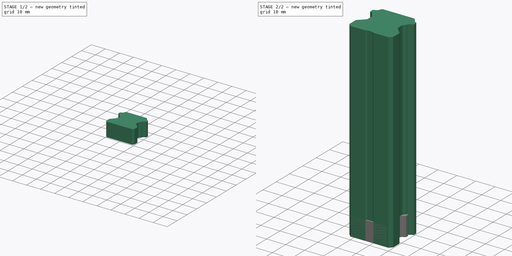
[diagram: build sequence overview — one tinted view per stage of 2, left to right]
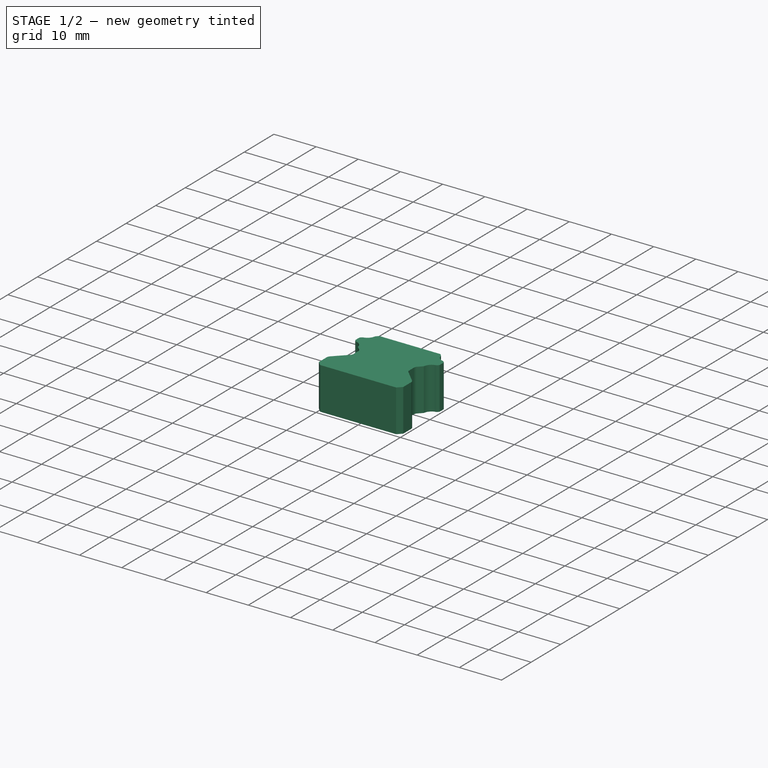
[diagram: stage 1 of 2 — iso view after this stage's code; geometry added in this stage tinted green]
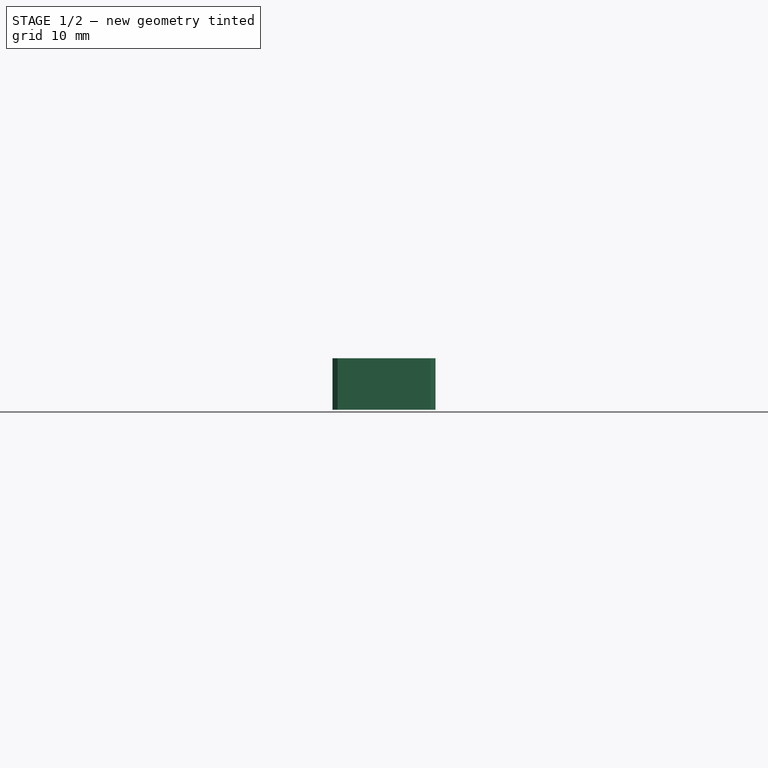
[diagram: stage 1 of 2 — front view after this stage's code; geometry added in this stage tinted green]
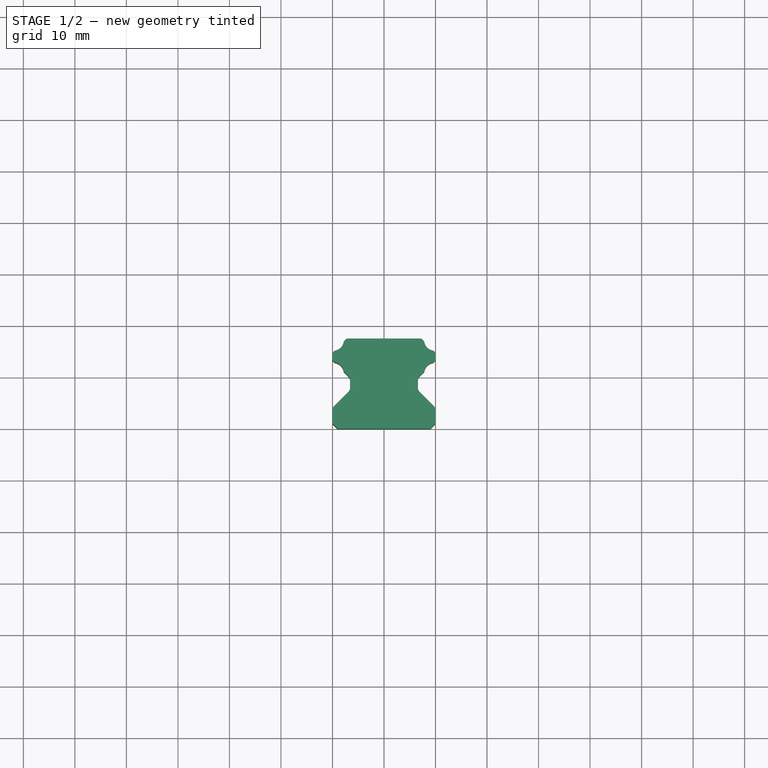
[diagram: stage 1 of 2 — top view after this stage's code; geometry added in this stage tinted green]
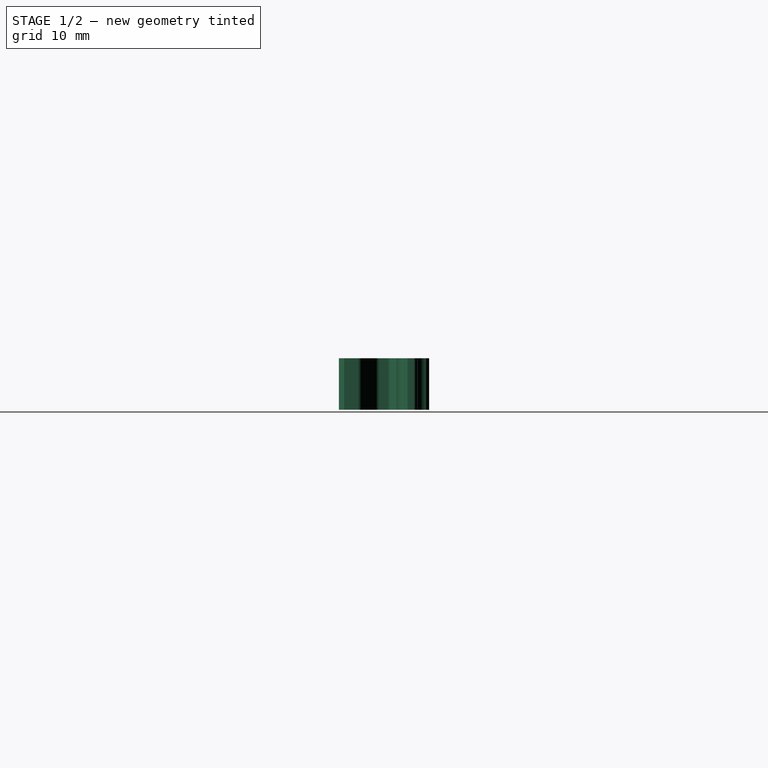
[diagram: stage 1 of 2 — right view after this stage's code; geometry added in this stage tinted green]
FCSTD DOCUMENT  (FreeCAD 0.20R30923 (Git))
Label: HGxx
License: All rights reserved
LicenseURL: http://en.wikipedia.org/wiki/All_rights_reserved
objects: Sketcher::SketchObject×4, PartDesign::Body×4, PartDesign::Pad×3, App::FeaturePython×2, Part::FeaturePython×2, App::Link×1, Spreadsheet::Sheet×1
note: 18 computed .brp shape members not serialized (recipe doc carries the construction recipe); baked Part::Feature solids carry a one-line shape summary decoded from their .brp

FEATURE [PartDesign::Body] Body
  AutoGroupSolids = false
  ExportMode = 0
  Group = -> [Pad]
  Origin = -> Origin
  Tip = -> Pad
  TreeRank = 155
  _ExportChildren = -> [Pad]
  _GroupVersion = 1
FEATURE [App::FeaturePython] Constraints  # WARN: FeaturePython — macro-defined, semantics opaque (R4)
  TreeRank = 163
  _LinkVersion = 1
  _Version = 1
FEATURE [App::FeaturePython] Elements  # WARN: FeaturePython — macro-defined, semantics opaque (R4)
  TreeRank = 164
  _LinkVersion = 1
FEATURE [App::Link] Link  label="Link(HGR15)"
  AutoLinkLabel = true
  AutoPlacement = true
  LinkedObject = -> Body001
  SyncGroupVisibility = false
  TreeRank = 166
  _LinkVersion = 1
  expr: LinkedObject = Spreadsheet.HGRresult
FEATURE [Part::FeaturePython] Parts  # WARN: FeaturePython — macro-defined, semantics opaque (R4)
  Group = -> [Link]
  GroupMode = 0
  TreeRank = 165
  _LinkVersion = 1
FEATURE [Part::FeaturePython] Assembly  # WARN: FeaturePython — macro-defined, semantics opaque (R4)
  AutoRelax = true
  BuildShape = 0
  Configuration = 0
  Freeze = false
  Group = -> [Constraints,Elements,Parts]
  TreeRank = 162
  Verbose = false
  _LinkVersion = 1
  _SolverType = 1
  _Version = 1
  expr: Configuration.Enum = Spreadsheet.cells[<<A3:|>>]
FEATURE [PartDesign::Body] Body003  label="HGR25"
  AutoGroupSolids = false
  ExportMode = 0
  Group = -> [Sketch]
  Origin = -> Origin003
  TreeRank = 196
  _ExportChildren = -> [Sketch]
  _GroupVersion = 1
FEATURE [PartDesign::Pad] Pad002
  AddSubType = 0
  AlongSketchNormal = false
  CheckUpToFaceLimits = true
  ClaimChildren = false
  Direction = (0,0,1)
  Fit = 0
  FitJoin = 0
  InnerFit = 0
  InnerFitJoin = 0
  InnerTaperAngle = 0
  InnerTaperAngleRev = 0
  Length = 10
  Length2 = 100
  Linearize = true
  NewSolid = false
  Profile = -> Sketch002
  Suppress = false
  TreeRank = 199
  Type = 0
  _ProfileBasedVersion = 1
FEATURE [PartDesign::Body] Body001  label="HGR15"
  AutoGroupSolids = false
  ExportMode = 0
  Group = -> [Sketch002,Pad002]
  Origin = -> Origin001
  Tip = -> Pad002
  TreeRank = 176
  _ExportChildren = -> [Pad002]
  _GroupVersion = 1
FEATURE [PartDesign::Pad] Pad003
  AddSubType = 0
  AlongSketchNormal = false
  CheckUpToFaceLimits = true
  ClaimChildren = false
  Direction = (0,0,1)
  Fit = 0
  FitJoin = 0
  InnerFit = 0
  InnerFitJoin = 0
  InnerTaperAngle = 0
  InnerTaperAngleRev = 0
  Length = 10
  Length2 = 100
  Linearize = true
  NewSolid = false
  Profile = -> Sketch001
  Suppress = false
  TreeRank = 200
  Type = 0
  _ProfileBasedVersion = 1
FEATURE [PartDesign::Body] Body002  label="HGR20"
  AutoGroupSolids = false
  ExportMode = 0
  Group = -> [Sketch001,Pad003]
  Origin = -> Origin002
  Tip = -> Pad003
  TreeRank = 186
  _ExportChildren = -> [Pad003]
  _GroupVersion = 1
FEATURE [Spreadsheet::Sheet] Spreadsheet
  PythonMode = false
  ShowCells = 0
  TreeRank = 201
  cells = A2==dbind(Assembly.Configuration.All); B2(HGRnumber)==.B3; A3=HGR15; B3=1; A4=HGR20; B4=2; A5=HGR25; B5=3; A8(HGR_str)==.HGRnumber == 1 ? <<HGR15>> : (.HGRnumber == 2 ? <<HGR20>> : <<HGR25>>); A9(HGRresult)==<<Body00%s (%s)>> % tuple(.HGRnumber, HGR_str)
  expr: cells.Bind.B2.ZZ2 = tuple(.cells, <<B>> + str(hiddenref(Assembly.Configuration) + 3), <<ZZ>> + str(hiddenref(Assembly.Configuration) + 3))
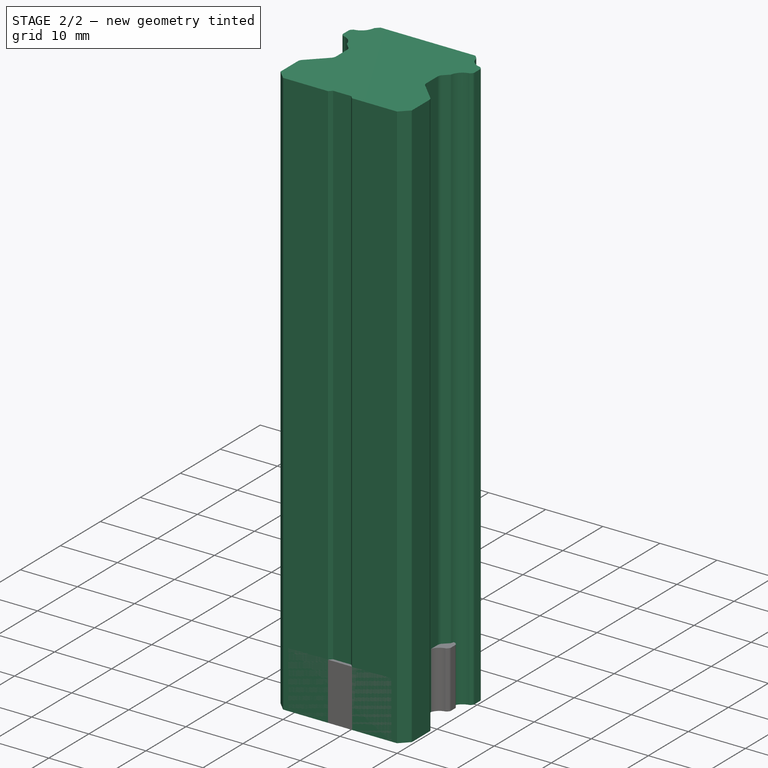
[diagram: stage 2 of 2 — iso view after this stage's code; geometry added in this stage tinted green]
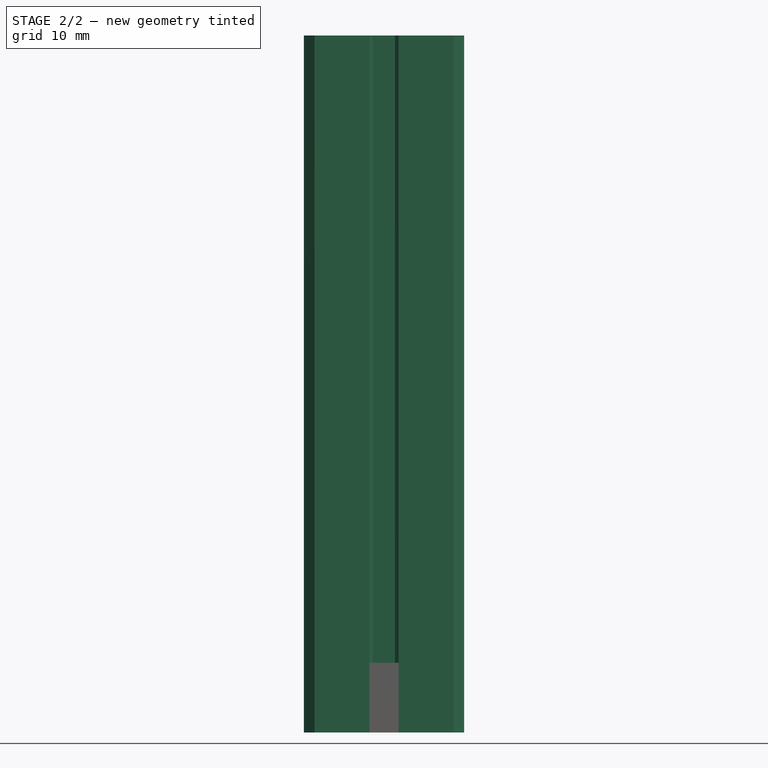
[diagram: stage 2 of 2 — front view after this stage's code; geometry added in this stage tinted green]
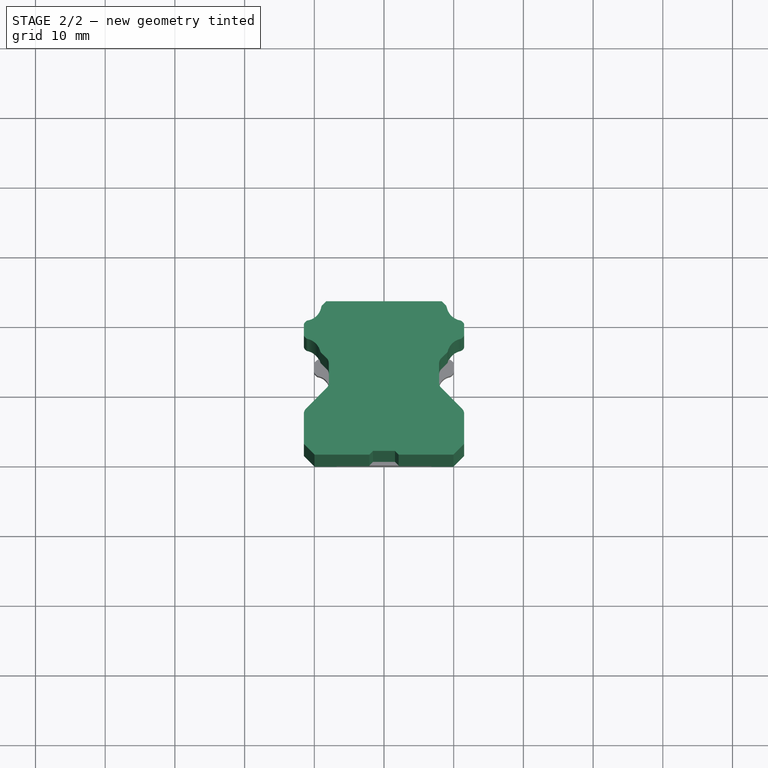
[diagram: stage 2 of 2 — top view after this stage's code; geometry added in this stage tinted green]
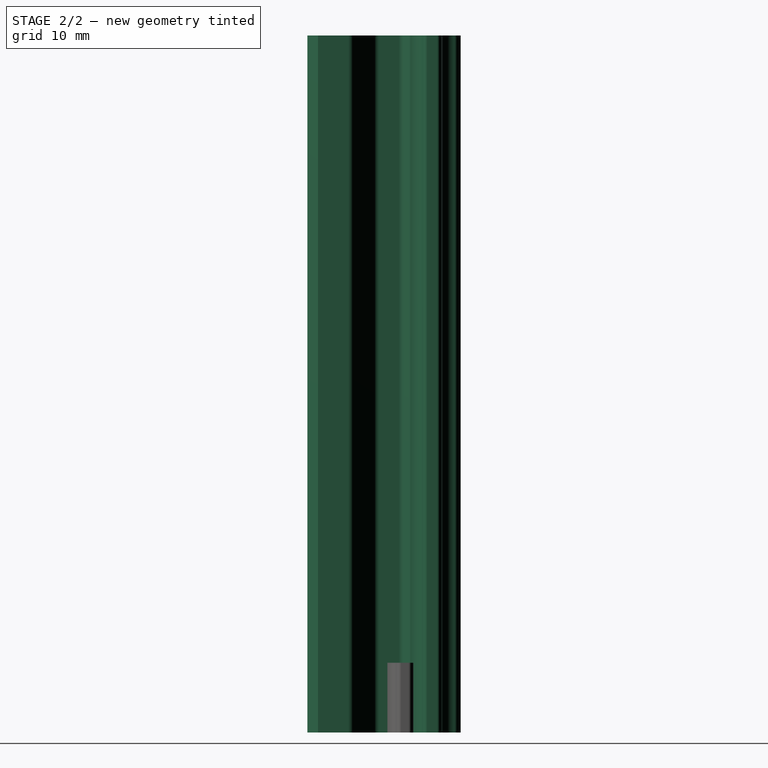
[diagram: stage 2 of 2 — right view after this stage's code; geometry added in this stage tinted green]
FEATURE [Sketcher::SketchObject] Sketch  label="HGR25R"
  FullyConstrained = false
  TreeRank = 161
  sketch-geometry (46):
    g0: LineSegment StartX=11.2096 StartY=6.56184 StartZ=0 EndX=8.20598 EndY=9.58663 EndZ=0
    g1: LineSegment StartX=-9.97922 StartY=0 StartZ=0 EndX=-11.5 EndY=1.52786 EndZ=0
    g2: LineSegment StartX=-8.20846 StartY=13.8135 StartZ=0 EndX=-8.93873 EndY=14.5438 EndZ=0
    g3: LineSegment StartX=2.10672 StartY=0 StartZ=0 EndX=1.58064 EndY=0.526074 EndZ=0
    g4: LineSegment StartX=-11.2036 StartY=16.7216 StartZ=0 EndX=-11.3536 EndY=16.8716 EndZ=0
    g5: LineSegment StartX=11.3536 StartY=18.9781 StartZ=0 EndX=11.1895 EndY=19.1421 EndZ=0
    g6: LineSegment StartX=9.04575 StartY=21.2544 StartZ=0 EndX=8.30011 EndY=22 EndZ=0
    g7: LineSegment StartX=-9.97922 StartY=0 StartZ=0 EndX=-2.10672 EndY=0 EndZ=0
    g8: LineSegment StartX=2.10672 StartY=0 StartZ=0 EndX=9.97922 EndY=0 EndZ=0
    g9: LineSegment StartX=-1.58064 StartY=0.526074 StartZ=0 EndX=1.58064 EndY=0.526074 EndZ=0
    g10: LineSegment StartX=-8.30011 StartY=22 StartZ=0 EndX=8.30011 EndY=22 EndZ=0
    g11: LineSegment StartX=-2.10672 StartY=0 StartZ=0 EndX=-1.58064 EndY=0.526074 EndZ=0
    g12: LineSegment StartX=11.2036 StartY=16.7216 StartZ=0 EndX=11.3536 EndY=16.8716 EndZ=0
    g13: LineSegment StartX=-11.3536 StartY=18.9781 StartZ=0 EndX=-11.1895 EndY=19.1421 EndZ=0
    g14: LineSegment StartX=-9.04575 StartY=21.2544 StartZ=0 EndX=-8.30011 EndY=22 EndZ=0
    g15: LineSegment StartX=8.20846 StartY=13.8135 StartZ=0 EndX=8.93873 EndY=14.5438 EndZ=0
    g16: LineSegment StartX=9.97922 StartY=0 StartZ=0 EndX=11.5 EndY=1.52786 EndZ=0
    g17: LineSegment StartX=-11.2096 StartY=6.56184 StartZ=0 EndX=-8.20598 EndY=9.58663 EndZ=0
    g18: LineSegment StartX=-11.5 StartY=17.2251 StartZ=0 EndX=-11.5 EndY=18.6245 EndZ=0
    g19: LineSegment StartX=-11.5 StartY=1.52786 StartZ=0 EndX=-11.5 EndY=5.85723 EndZ=0
    g20: LineSegment StartX=-7.91557 StartY=10.2912 StartZ=0 EndX=-7.91557 EndY=13.1064 EndZ=0
    g21: LineSegment StartX=7.91557 StartY=10.2912 StartZ=0 EndX=7.91557 EndY=13.1064 EndZ=0
    g22: LineSegment StartX=11.5 StartY=1.52786 StartZ=0 EndX=11.5 EndY=5.85723 EndZ=0
    g23: LineSegment StartX=11.5 StartY=17.2251 StartZ=0 EndX=11.5 EndY=18.6245 EndZ=0
    g24: ArcOfCircle CenterX=-11.4771 CenterY=14.2438 CenterZ=0 NormalX=0 NormalY=0 NormalZ=1 AngleXU=0 Radius=2.4 StartAngle=0.218097 EndAngle=1.35284
    g25: ArcOfCircle CenterX=-11.4693 CenterY=21.6085 CenterZ=0 NormalX=0 NormalY=0 NormalZ=1 AngleXU=0 Radius=2.4 StartAngle=4.93215 EndAngle=6.08802
    g26: ArcOfCircle CenterX=-11 CenterY=17.2251 CenterZ=0 NormalX=0 NormalY=0 NormalZ=1 AngleXU=0 Radius=0.5 StartAngle=3.14159 EndAngle=3.92699
    g27: ArcOfCircle CenterX=-11 CenterY=18.6245 CenterZ=0 NormalX=0 NormalY=0 NormalZ=1 AngleXU=0 Radius=0.499999 StartAngle=2.3562 EndAngle=3.14159
    g28: ArcOfCircle CenterX=-10.85 CenterY=17.0752 CenterZ=0 NormalX=0 NormalY=0 NormalZ=1 AngleXU=0 Radius=0.5 StartAngle=3.92699 EndAngle=4.49444
    g29: ArcOfCircle CenterX=-10.8494 CenterY=18.7757 CenterZ=0 NormalX=0 NormalY=0 NormalZ=1 AngleXU=0 Radius=0.5 StartAngle=1.76548 EndAngle=2.31906
    g30: ArcOfCircle CenterX=-10.5 CenterY=5.85723 CenterZ=0 NormalX=0 NormalY=0 NormalZ=1 AngleXU=0 Radius=0.999997 StartAngle=2.35971 EndAngle=3.14159
    g31: ArcOfCircle CenterX=-8.91557 CenterY=13.1064 CenterZ=0 NormalX=0 NormalY=0 NormalZ=1 AngleXU=0 Radius=1 StartAngle=0 EndAngle=0.785398
    g32: ArcOfCircle CenterX=-8.91557 CenterY=10.2912 CenterZ=0 NormalX=0 NormalY=0 NormalZ=1 AngleXU=0 Radius=0.999997 StartAngle=5.5013 EndAngle=6.28319
    g33: ArcOfCircle CenterX=-8.67937 CenterY=14.9712 CenterZ=0 NormalX=0 NormalY=0 NormalZ=1 AngleXU=0 Radius=0.5 StartAngle=3.57106 EndAngle=4.16705
    g34: ArcOfCircle CenterX=-8.6749 CenterY=20.9471 CenterZ=0 NormalX=0 NormalY=0 NormalZ=1 AngleXU=0 Radius=0.48161 StartAngle=2.44968 EndAngle=2.72251
    g35: ArcOfCircle CenterX=8.6749 CenterY=20.9471 CenterZ=0 NormalX=0 NormalY=0 NormalZ=1 AngleXU=0 Radius=0.481608 StartAngle=0.419083 EndAngle=0.691918
    g36: ArcOfCircle CenterX=8.67937 CenterY=14.9712 CenterZ=0 NormalX=0 NormalY=0 NormalZ=1 AngleXU=0 Radius=0.5 StartAngle=5.25773 EndAngle=5.85371
    g37: ArcOfCircle CenterX=8.91557 CenterY=10.2912 CenterZ=0 NormalX=0 NormalY=0 NormalZ=1 AngleXU=0 Radius=0.999997 StartAngle=3.14159 EndAngle=3.92348
    g38: ArcOfCircle CenterX=8.91557 CenterY=13.1064 CenterZ=0 NormalX=0 NormalY=0 NormalZ=1 AngleXU=0 Radius=1 StartAngle=2.35619 EndAngle=3.14159
    g39: ArcOfCircle CenterX=10.5 CenterY=5.85723 CenterZ=0 NormalX=0 NormalY=0 NormalZ=1 AngleXU=0 Radius=0.999997 StartAngle=0 EndAngle=0.781885
    g40: ArcOfCircle CenterX=10.8494 CenterY=18.7757 CenterZ=0 NormalX=0 NormalY=0 NormalZ=1 AngleXU=0 Radius=0.5 StartAngle=0.82253 EndAngle=1.37611
    g41: ArcOfCircle CenterX=10.85 CenterY=17.0752 CenterZ=0 NormalX=0 NormalY=0 NormalZ=1 AngleXU=0 Radius=0.5 StartAngle=4.93034 EndAngle=5.49779
    g42: ArcOfCircle CenterX=11 CenterY=17.2251 CenterZ=0 NormalX=0 NormalY=0 NormalZ=1 AngleXU=0 Radius=0.499999 StartAngle=5.49779 EndAngle=6.28319
    g43: ArcOfCircle CenterX=11 CenterY=18.6245 CenterZ=0 NormalX=0 NormalY=0 NormalZ=1 AngleXU=0 Radius=0.5 StartAngle=6.28318 EndAngle=7.06858
    g44: ArcOfCircle CenterX=11.4693 CenterY=21.6085 CenterZ=0 NormalX=0 NormalY=0 NormalZ=1 AngleXU=0 Radius=2.4 StartAngle=3.33676 EndAngle=4.49263
    g45: ArcOfCircle CenterX=11.4771 CenterY=14.2438 CenterZ=0 NormalX=0 NormalY=0 NormalZ=1 AngleXU=0 Radius=2.4 StartAngle=1.78875 EndAngle=2.9235
FEATURE [Sketcher::SketchObject] Sketch001  label="HGR20R"
  FullyConstrained = false
  TreeRank = 159
  sketch-geometry (42):
    g0: LineSegment StartX=-9 StartY=0 StartZ=0 EndX=-10 EndY=1 EndZ=0
    g1: LineSegment StartX=9.70711 StartY=4.36361 StartZ=0 EndX=6.89289 EndY=7.17783 EndZ=0
    g2: LineSegment StartX=-9.69063 StartY=12.9499 StartZ=0 EndX=-9.85355 EndY=13.1128 EndZ=0
    g3: LineSegment StartX=7.63253 StartY=17.0982 StartZ=0 EndX=7.23072 EndY=17.5 EndZ=0
    g4: LineSegment StartX=-6.89289 StartY=10.1522 StartZ=0 EndX=-7.63016 EndY=10.8894 EndZ=0
    g5: LineSegment StartX=9.85355 StartY=14.8772 StartZ=0 EndX=9.6785 EndY=15.0522 EndZ=0
    g6: LineSegment StartX=-9 StartY=0 StartZ=0 EndX=9 EndY=0 EndZ=0
    g7: LineSegment StartX=-7.23072 StartY=17.5 StartZ=0 EndX=7.23072 EndY=17.5 EndZ=0
    g8: LineSegment StartX=-9.85355 StartY=14.8772 StartZ=0 EndX=-9.6785 EndY=15.0522 EndZ=0
    g9: LineSegment StartX=6.89289 StartY=10.1522 StartZ=0 EndX=7.63016 EndY=10.8894 EndZ=0
    g10: LineSegment StartX=9 StartY=0 StartZ=0 EndX=10 EndY=1 EndZ=0
    g11: LineSegment StartX=-9.70711 StartY=4.36361 StartZ=0 EndX=-6.89289 EndY=7.17783 EndZ=0
    g12: LineSegment StartX=9.69063 StartY=12.9499 StartZ=0 EndX=9.85355 EndY=13.1128 EndZ=0
    g13: LineSegment StartX=-7.63253 StartY=17.0982 StartZ=0 EndX=-7.23072 EndY=17.5 EndZ=0
    g14: LineSegment StartX=-10 StartY=1 StartZ=0 EndX=-10 EndY=3.65651 EndZ=0
    g15: LineSegment StartX=-10 StartY=13.4664 StartZ=0 EndX=-10 EndY=14.5236 EndZ=0
    g16: LineSegment StartX=-6.6 StartY=7.88493 StartZ=0 EndX=-6.6 EndY=9.44506 EndZ=0
    g17: LineSegment StartX=6.6 StartY=7.88493 StartZ=0 EndX=6.6 EndY=9.44507 EndZ=0
    g18: LineSegment StartX=10 StartY=1 StartZ=0 EndX=10 EndY=3.65651 EndZ=0
    g19: LineSegment StartX=10 StartY=13.4664 StartZ=0 EndX=10 EndY=14.5236 EndZ=0
    g20: ArcOfCircle CenterX=-9.8106 CenterY=10.8487 CenterZ=0 NormalX=0 NormalY=0 NormalZ=1 AngleXU=0 Radius=2 StartAngle=0.190564 EndAngle=1.38023
    g21: ArcOfCircle CenterX=-9.81014 CenterY=17.1511 CenterZ=0 NormalX=0 NormalY=0 NormalZ=1 AngleXU=0 Radius=2 StartAngle=4.9077 EndAngle=6.08787
    g22: ArcOfCircle CenterX=-9.5 CenterY=13.4664 CenterZ=0 NormalX=0 NormalY=0 NormalZ=1 AngleXU=0 Radius=0.499999 StartAngle=3.14159 EndAngle=3.92699
    g23: ArcOfCircle CenterX=-9.5 CenterY=14.5236 CenterZ=0 NormalX=0 NormalY=0 NormalZ=1 AngleXU=0 Radius=0.499999 StartAngle=2.3562 EndAngle=3.14159
    g24: ArcOfCircle CenterX=-9.33707 CenterY=13.3035 CenterZ=0 NormalX=0 NormalY=0 NormalZ=1 AngleXU=0 Radius=0.499999 StartAngle=3.92699 EndAngle=4.52183
    g25: ArcOfCircle CenterX=-9.32495 CenterY=14.6987 CenterZ=0 NormalX=0 NormalY=0 NormalZ=1 AngleXU=0 Radius=0.500001 StartAngle=1.76611 EndAngle=2.3562
    g26: ArcOfCircle CenterX=-9 CenterY=3.65651 CenterZ=0 NormalX=0 NormalY=0 NormalZ=1 AngleXU=0 Radius=1 StartAngle=2.35619 EndAngle=3.14159
    g27: ArcOfCircle CenterX=-7.6 CenterY=7.88493 CenterZ=0 NormalX=0 NormalY=0 NormalZ=1 AngleXU=0 Radius=1 StartAngle=5.49779 EndAngle=6.28319
    g28: ArcOfCircle CenterX=-7.6 CenterY=9.44506 CenterZ=0 NormalX=0 NormalY=0 NormalZ=1 AngleXU=0 Radius=1 StartAngle=0 EndAngle=0.785399
    g29: ArcOfCircle CenterX=-7.35468 CenterY=16.6825 CenterZ=0 NormalX=0 NormalY=0 NormalZ=1 AngleXU=0 Radius=0.5 StartAngle=2.16 EndAngle=2.97992
    g30: ArcOfCircle CenterX=-7.35293 CenterY=11.3055 CenterZ=0 NormalX=0 NormalY=0 NormalZ=1 AngleXU=0 Radius=0.5 StartAngle=3.29825 EndAngle=4.12467
    g31: ArcOfCircle CenterX=7.35293 CenterY=11.3055 CenterZ=0 NormalX=0 NormalY=0 NormalZ=1 AngleXU=0 Radius=0.5 StartAngle=5.30011 EndAngle=6.12653
    g32: ArcOfCircle CenterX=7.35468 CenterY=16.6825 CenterZ=0 NormalX=0 NormalY=0 NormalZ=1 AngleXU=0 Radius=0.500001 StartAngle=0.161676 EndAngle=0.981596
    g33: ArcOfCircle CenterX=7.6 CenterY=7.88493 CenterZ=0 NormalX=0 NormalY=0 NormalZ=1 AngleXU=0 Radius=1 StartAngle=3.14159 EndAngle=3.92699
    g34: ArcOfCircle CenterX=7.6 CenterY=9.44507 CenterZ=0 NormalX=0 NormalY=0 NormalZ=1 AngleXU=0 Radius=1 StartAngle=2.35619 EndAngle=3.14159
    g35: ArcOfCircle CenterX=9 CenterY=3.65651 CenterZ=0 NormalX=0 NormalY=0 NormalZ=1 AngleXU=0 Radius=1 StartAngle=0 EndAngle=0.785398
    g36: ArcOfCircle CenterX=9.32495 CenterY=14.6987 CenterZ=0 NormalX=0 NormalY=0 NormalZ=1 AngleXU=0 Radius=0.499999 StartAngle=0.785397 EndAngle=1.37548
    g37: ArcOfCircle CenterX=9.33707 CenterY=13.3035 CenterZ=0 NormalX=0 NormalY=0 NormalZ=1 AngleXU=0 Radius=0.5 StartAngle=4.90295 EndAngle=5.49779
    g38: ArcOfCircle CenterX=9.5 CenterY=13.4664 CenterZ=0 NormalX=0 NormalY=0 NormalZ=1 AngleXU=0 Radius=0.499999 StartAngle=5.49779 EndAngle=6.28319
    g39: ArcOfCircle CenterX=9.5 CenterY=14.5236 CenterZ=0 NormalX=0 NormalY=0 NormalZ=1 AngleXU=0 Radius=0.499999 StartAngle=0 EndAngle=0.785397
    g40: ArcOfCircle CenterX=9.81014 CenterY=17.1511 CenterZ=0 NormalX=0 NormalY=0 NormalZ=1 AngleXU=0 Radius=2 StartAngle=3.33691 EndAngle=4.51707
    g41: ArcOfCircle CenterX=9.8106 CenterY=10.8487 CenterZ=0 NormalX=0 NormalY=0 NormalZ=1 AngleXU=0 Radius=2 StartAngle=1.76136 EndAngle=2.95103
  constraints (50):
    c: Coincident(g7,g13)
    c: Coincident(g13,g29)
    c: Coincident(g21,g29)
    c: Coincident(g21,g25)
    c: Coincident(g8,g25)
    c: Coincident(g8,g23)
    c: Coincident(g15,g23)
    c: Coincident(g15,g22)
    c: Coincident(g2,g22)
    c: Coincident(g2,g24)
    c: Coincident(g20,g24)
    c: Coincident(g20,g30)
    c: Coincident(g4,g30)
    c: Coincident(g4,g28)
    c: Coincident(g16,g28)
    c: Coincident(g16,g27)
    c: Coincident(g11,g27)
    c: Coincident(g11,g26)
    c: Coincident(g14,g26)
    c: Coincident(g0,g14)
    c: Coincident(g0,g6)
    c: Coincident(g6,g10)
    c: Coincident(g10,g18)
    c: Coincident(g18,g35)
    c: Coincident(g1,g35)
    c: Coincident(g1,g33)
    c: Coincident(g17,g33)
    c: Coincident(g17,g34)
    c: Coincident(g9,g34)
    c: Coincident(g9,g31)
    c: Coincident(g31,g41)
    c: Coincident(g37,g41)
    c: Coincident(g12,g37)
    c: Coincident(g12,g38)
    c: Coincident(g19,g38)
    c: Coincident(g19,g39)
    c: Coincident(g5,g39)
    c: Coincident(g5,g36)
    c: Coincident(g36,g40)
    c: Coincident(g32,g40)
    c: Coincident(g3,g32)
    c: Coincident(g3,g7)
    c: Horizontal(g7)
    c: Vertical(g19)
    c: Vertical(g18)
    c: Horizontal(g6)
    c: Vertical(g16)
    c: Vertical(g17)
    c: Vertical(g14)
    c: Vertical(g15)
FEATURE [Sketcher::SketchObject] Sketch002  label="HGR15R"
  FullyConstrained = false
  TreeRank = 158
  sketch-geometry (50):
    g0: LineSegment StartX=6.80531 StartY=13.0612 StartZ=0 EndX=6.77501 EndY=13.2021 EndZ=0
    g1: LineSegment StartX=-6.77426 StartY=10.7128 StartZ=0 EndX=-6.80624 EndY=10.8541 EndZ=0
    g2: LineSegment StartX=-6.8 StartY=0 StartZ=0 EndX=-7.5 EndY=0.7 EndZ=0
    g3: LineSegment StartX=7.20711 StartY=3.95047 StartZ=0 EndX=4.88716 EndY=6.27042 EndZ=0
    g4: LineSegment StartX=-4.88716 StartY=8.39816 StartZ=0 EndX=-5.08159 EndY=8.59259 EndZ=0
    g5: LineSegment StartX=5.08606 StartY=14.9629 StartZ=0 EndX=5.04899 EndY=15 EndZ=0
    g6: LineSegment StartX=-7.06065 StartY=11.1421 StartZ=0 EndX=-7.23572 EndY=11.2052 EndZ=0
    g7: LineSegment StartX=7.21871 StartY=12.7195 StartZ=0 EndX=7.07767 EndY=12.7633 EndZ=0
    g8: LineSegment StartX=-6.8 StartY=0 StartZ=0 EndX=6.8 EndY=0 EndZ=0
    g9: LineSegment StartX=-5.04899 StartY=15 StartZ=0 EndX=5.04899 EndY=15 EndZ=0
    g10: LineSegment StartX=-7.21871 StartY=12.7195 StartZ=0 EndX=-7.07767 EndY=12.7633 EndZ=0
    g11: LineSegment StartX=7.06065 StartY=11.1421 StartZ=0 EndX=7.23572 EndY=11.2052 EndZ=0
    g12: LineSegment StartX=6.8 StartY=0 StartZ=0 EndX=7.5 EndY=0.7 EndZ=0
    g13: LineSegment StartX=-7.20711 StartY=3.95047 StartZ=0 EndX=-4.88716 EndY=6.27042 EndZ=0
    g14: LineSegment StartX=4.88716 StartY=8.39816 StartZ=0 EndX=5.08159 EndY=8.59259 EndZ=0
    g15: LineSegment StartX=-5.08606 StartY=14.9629 StartZ=0 EndX=-5.04899 EndY=15 EndZ=0
    g16: LineSegment StartX=6.77426 StartY=10.7128 StartZ=0 EndX=6.80623 EndY=10.8541 EndZ=0
    g17: LineSegment StartX=-6.80531 StartY=13.0612 StartZ=0 EndX=-6.77501 EndY=13.2021 EndZ=0
    g18: LineSegment StartX=-7.5 StartY=0.7 StartZ=0 EndX=-7.5 EndY=3.24336 EndZ=0
    g19: LineSegment StartX=-7.5 StartY=11.5815 StartZ=0 EndX=-7.5 EndY=12.3375 EndZ=0
    g20: LineSegment StartX=-4.77 StartY=6.55326 StartZ=0 EndX=-4.77 EndY=8.11532 EndZ=0
    g21: LineSegment StartX=4.77 StartY=6.55326 StartZ=0 EndX=4.77 EndY=8.11532 EndZ=0
    g22: LineSegment StartX=7.5 StartY=0.7 StartZ=0 EndX=7.5 EndY=3.24336 EndZ=0
    g23: LineSegment StartX=7.5 StartY=11.5815 StartZ=0 EndX=7.5 EndY=12.3375 EndZ=0
    g24: ArcOfCircle CenterX=-7.19637 CenterY=10.7658 CenterZ=0 NormalX=0 NormalY=0 NormalZ=1 AngleXU=0 Radius=0.4 StartAngle=0.222511 EndAngle=1.22461
    g25: ArcOfCircle CenterX=-7.19637 CenterY=13.1453 CenterZ=0 NormalX=0 NormalY=0 NormalZ=1 AngleXU=0 Radius=0.399999 StartAngle=5.01369 EndAngle=6.07137
    g26: ArcOfCircle CenterX=-7.1 CenterY=11.5815 CenterZ=0 NormalX=0 NormalY=0 NormalZ=1 AngleXU=0 Radius=0.4 StartAngle=3.14159 EndAngle=4.3662
    g27: ArcOfCircle CenterX=-7.1 CenterY=12.3375 CenterZ=0 NormalX=0 NormalY=0 NormalZ=1 AngleXU=0 Radius=0.399999 StartAngle=1.8721 EndAngle=3.14159
    g28: ArcOfCircle CenterX=-6.85624 CenterY=8.85756 CenterZ=0 NormalX=0 NormalY=0 NormalZ=1 AngleXU=0 Radius=1.6 StartAngle=0.134276 EndAngle=1.33249
    g29: ArcOfCircle CenterX=-6.85623 CenterY=15.0614 CenterZ=0 NormalX=0 NormalY=0 NormalZ=1 AngleXU=0 Radius=1.6 StartAngle=4.95078 EndAngle=6.13385
    g30: ArcOfCircle CenterX=-6.5 CenterY=3.24336 CenterZ=0 NormalX=0 NormalY=0 NormalZ=1 AngleXU=0 Radius=1 StartAngle=2.35619 EndAngle=3.14159
    g31: ArcOfCircle CenterX=-6.38412 CenterY=10.801 CenterZ=0 NormalX=0 NormalY=0 NormalZ=1 AngleXU=0 Radius=0.4 StartAngle=3.3641 EndAngle=4.47408
    g32: ArcOfCircle CenterX=-6.38395 CenterY=13.118 CenterZ=0 NormalX=0 NormalY=0 NormalZ=1 AngleXU=0 Radius=0.4 StartAngle=1.80919 EndAngle=2.92978
    g33: ArcOfCircle CenterX=-5.17 CenterY=6.55326 CenterZ=0 NormalX=0 NormalY=0 NormalZ=1 AngleXU=0 Radius=0.4 StartAngle=5.49779 EndAngle=6.28319
    g34: ArcOfCircle CenterX=-5.17 CenterY=8.11532 CenterZ=0 NormalX=0 NormalY=0 NormalZ=1 AngleXU=0 Radius=0.4 StartAngle=0 EndAngle=0.785398
    g35: ArcOfCircle CenterX=-4.95206 CenterY=14.586 CenterZ=0 NormalX=0 NormalY=0 NormalZ=1 AngleXU=0 Radius=0.4 StartAngle=1.91239 EndAngle=2.50636
    g36: ArcOfCircle CenterX=-4.89142 CenterY=8.9445 CenterZ=0 NormalX=0 NormalY=0 NormalZ=1 AngleXU=0 Radius=0.4 StartAngle=2.81782 EndAngle=4.21695
    g37: ArcOfCircle CenterX=4.89142 CenterY=8.9445 CenterZ=0 NormalX=0 NormalY=0 NormalZ=1 AngleXU=0 Radius=0.4 StartAngle=5.20783 EndAngle=6.60695
    g38: ArcOfCircle CenterX=4.95206 CenterY=14.586 CenterZ=0 NormalX=0 NormalY=0 NormalZ=1 AngleXU=0 Radius=0.4 StartAngle=0.635234 EndAngle=1.2292
    g39: ArcOfCircle CenterX=5.17 CenterY=6.55326 CenterZ=0 NormalX=0 NormalY=0 NormalZ=1 AngleXU=0 Radius=0.4 StartAngle=3.14159 EndAngle=3.92699
    g40: ArcOfCircle CenterX=5.17 CenterY=8.11532 CenterZ=0 NormalX=0 NormalY=0 NormalZ=1 AngleXU=0 Radius=0.4 StartAngle=2.3562 EndAngle=3.14159
    g41: ArcOfCircle CenterX=6.38395 CenterY=13.118 CenterZ=0 NormalX=0 NormalY=0 NormalZ=1 AngleXU=0 Radius=0.399999 StartAngle=0.211816 EndAngle=1.33241
    g42: ArcOfCircle CenterX=6.38412 CenterY=10.801 CenterZ=0 NormalX=0 NormalY=0 NormalZ=1 AngleXU=0 Radius=0.4 StartAngle=4.9507 EndAngle=6.06068
    g43: ArcOfCircle CenterX=6.5 CenterY=3.24336 CenterZ=0 NormalX=0 NormalY=0 NormalZ=1 AngleXU=0 Radius=1 StartAngle=0 EndAngle=0.785398
    g44: ArcOfCircle CenterX=6.85623 CenterY=15.0614 CenterZ=0 NormalX=0 NormalY=0 NormalZ=1 AngleXU=0 Radius=1.6 StartAngle=3.29093 EndAngle=4.474
    g45: ArcOfCircle CenterX=6.85624 CenterY=8.85756 CenterZ=0 NormalX=0 NormalY=0 NormalZ=1 AngleXU=0 Radius=1.6 StartAngle=1.8091 EndAngle=3.00732
    g46: ArcOfCircle CenterX=7.1 CenterY=11.5815 CenterZ=0 NormalX=0 NormalY=0 NormalZ=1 AngleXU=0 Radius=0.4 StartAngle=5.05857 EndAngle=6.28319
    g47: ArcOfCircle CenterX=7.1 CenterY=12.3375 CenterZ=0 NormalX=0 NormalY=0 NormalZ=1 AngleXU=0 Radius=0.4 StartAngle=1.15308e-06 EndAngle=1.2695
    g48: ArcOfCircle CenterX=7.19637 CenterY=10.7658 CenterZ=0 NormalX=0 NormalY=0 NormalZ=1 AngleXU=0 Radius=0.4 StartAngle=1.91698 EndAngle=2.91908
    g49: ArcOfCircle CenterX=7.19637 CenterY=13.1453 CenterZ=0 NormalX=0 NormalY=0 NormalZ=1 AngleXU=0 Radius=0.4 StartAngle=3.35341 EndAngle=4.41109
  constraints (50):
    c: Coincident(g9,g15)
    c: Coincident(g15,g35)
    c: Coincident(g29,g35)
    c: Coincident(g29,g32)
    c: Coincident(g17,g32)
    c: Coincident(g17,g25)
    c: Coincident(g10,g25)
    c: Coincident(g10,g27)
    c: Coincident(g19,g27)
    c: Coincident(g19,g26)
    c: Coincident(g6,g26)
    c: Coincident(g6,g24)
    c: Coincident(g1,g24)
    c: Coincident(g1,g31)
    c: Coincident(g28,g31)
    c: Coincident(g28,g36)
    c: Coincident(g4,g36)
    c: Coincident(g4,g34)
    c: Coincident(g20,g34)
    c: Coincident(g20,g33)
    c: Coincident(g13,g33)
    c: Coincident(g13,g30)
    c: Coincident(g18,g30)
    c: Coincident(g2,g18)
    c: Coincident(g2,g8)
    c: Coincident(g8,g12)
    c: Coincident(g12,g22)
    c: Coincident(g22,g43)
    c: Coincident(g3,g43)
    c: Coincident(g3,g39)
    c: Coincident(g21,g39)
    c: Coincident(g21,g40)
    c: Coincident(g14,g40)
    c: Coincident(g14,g37)
    c: Coincident(g37,g45)
    c: Coincident(g42,g45)
    c: Coincident(g16,g42)
    c: Coincident(g16,g48)
    c: Coincident(g11,g48)
    c: Coincident(g11,g46)
    c: Coincident(g23,g46)
    c: Coincident(g23,g47)
    c: Coincident(g7,g47)
    c: Coincident(g7,g49)
    c: Coincident(g0,g49)
    c: Coincident(g0,g41)
    c: Coincident(g41,g44)
    c: Coincident(g38,g44)
    c: Coincident(g5,g38)
    c: Coincident(g5,g9)
FEATURE [Sketcher::SketchObject] Sketch003  label="HGRxx"
  FullyConstrained = false
  TreeRank = 160
  sketch-geometry (52):
    g0: LineSegment StartX=11.2093 StartY=6.56494 StartZ=0 EndX=8.2063 EndY=9.5863 EndZ=0
    g1: LineSegment StartX=-9.97 StartY=4e-16 StartZ=0 EndX=-11.5 EndY=1.53 EndZ=0
    g2: LineSegment StartX=-8.22091 StartY=13.8306 StartZ=0 EndX=-9.01307 EndY=14.5956 EndZ=0
    g3: LineSegment StartX=2.105 StartY=4e-16 StartZ=0 EndX=1.58 EndY=0.53 EndZ=0
    g4: LineSegment StartX=-11.2115 StartY=16.7186 StartZ=0 EndX=-11.3473 EndY=16.8497 EndZ=0
    g5: LineSegment StartX=11.3526 StartY=18.9639 StartZ=0 EndX=11.2067 EndY=19.109 EndZ=0
    g6: LineSegment StartX=8.78687 StartY=21.5158 StartZ=0 EndX=8.3 EndY=22 EndZ=0
    g7: LineSegment StartX=2.105 StartY=4e-16 StartZ=0 EndX=9.97 EndY=4e-16 EndZ=0
    g8: LineSegment StartX=-1.58 StartY=0.53 StartZ=0 EndX=1.58 EndY=0.53 EndZ=0
    g9: LineSegment StartX=-8.3 StartY=22 StartZ=0 EndX=8.3 EndY=22 EndZ=0
    g10: LineSegment StartX=-2.105 StartY=4e-16 StartZ=0 EndX=-1.58 EndY=0.53 EndZ=0
    g11: LineSegment StartX=11.2115 StartY=16.7186 StartZ=0 EndX=11.3473 EndY=16.8497 EndZ=0
    g12: LineSegment StartX=-11.3526 StartY=18.9639 StartZ=0 EndX=-11.2067 EndY=19.109 EndZ=0
    g13: LineSegment StartX=-8.78687 StartY=21.5158 StartZ=0 EndX=-8.3 EndY=22 EndZ=0
    g14: LineSegment StartX=8.22091 StartY=13.8306 StartZ=0 EndX=9.01307 EndY=14.5956 EndZ=0
    g15: LineSegment StartX=9.97 StartY=4e-16 StartZ=0 EndX=11.5 EndY=1.53 EndZ=0
    g16: LineSegment StartX=-11.2093 StartY=6.56494 StartZ=0 EndX=-8.2063 EndY=9.5863 EndZ=0
    g17: LineSegment StartX=-11.5 StartY=17.2094 StartZ=0 EndX=-11.5 EndY=18.6094 EndZ=0
    g18: LineSegment StartX=-11.5 StartY=1.53 StartZ=0 EndX=-11.5 EndY=5.86 EndZ=0
    g19: LineSegment StartX=-7.91557 StartY=10.2912 StartZ=0 EndX=-7.91557 EndY=13.1112 EndZ=0
    g20: LineSegment StartX=7.91557 StartY=10.2912 StartZ=0 EndX=7.91557 EndY=13.1112 EndZ=0
    g21: LineSegment StartX=11.5 StartY=1.53 StartZ=0 EndX=11.5 EndY=5.86 EndZ=0
    g22: LineSegment StartX=11.5 StartY=17.2094 StartZ=0 EndX=11.5 EndY=18.6094 EndZ=0
    g23: ArcOfCircle CenterX=-11.4771 CenterY=14.2438 CenterZ=0 NormalX=0 NormalY=0 NormalZ=1 AngleXU=0 Radius=2.4 StartAngle=0.247869 EndAngle=1.35783
    g24: ArcOfCircle CenterX=-11.3602 CenterY=21.61 CenterZ=0 NormalX=0 NormalY=0 NormalZ=1 AngleXU=0 Radius=2.4 StartAngle=4.88779 EndAngle=6.10741
    g25: ArcOfCircle CenterX=-11 CenterY=17.2094 CenterZ=0 NormalX=0 NormalY=0 NormalZ=1 AngleXU=0 Radius=0.5 StartAngle=3.14159 EndAngle=3.94444
    g26: ArcOfCircle CenterX=-11 CenterY=18.6094 CenterZ=0 NormalX=0 NormalY=0 NormalZ=1 AngleXU=0 Radius=0.5 StartAngle=2.35348 EndAngle=3.14159
    g27: ArcOfCircle CenterX=-10.8642 CenterY=17.0782 CenterZ=0 NormalX=0 NormalY=0 NormalZ=1 AngleXU=0 Radius=0.5 StartAngle=3.94444 EndAngle=4.49943
    g28: ArcOfCircle CenterX=-10.8541 CenterY=18.7545 CenterZ=0 NormalX=0 NormalY=0 NormalZ=1 AngleXU=0 Radius=0.5 StartAngle=1.7462 EndAngle=2.35348
    g29: ArcOfCircle CenterX=-10.5 CenterY=5.86 CenterZ=0 NormalX=0 NormalY=0 NormalZ=1 AngleXU=0 Radius=1 StartAngle=2.35925 EndAngle=3.14159
    g30: ArcOfCircle CenterX=-8.91557 CenterY=13.1112 CenterZ=0 NormalX=0 NormalY=0 NormalZ=1 AngleXU=0 Radius=1 StartAngle=0 EndAngle=0.802851
    g31: ArcOfCircle CenterX=-8.91557 CenterY=10.2912 CenterZ=0 NormalX=0 NormalY=0 NormalZ=1 AngleXU=0 Radius=1 StartAngle=5.50084 EndAngle=6.28319
    g32: ArcOfCircle CenterX=-8.66574 CenterY=14.9552 CenterZ=0 NormalX=0 NormalY=0 NormalZ=1 AngleXU=0 Radius=0.5 StartAngle=3.38946 EndAngle=3.94444
    g33: ArcOfCircle CenterX=-8.50487 CenterY=21.1029 CenterZ=0 NormalX=0 NormalY=0 NormalZ=1 AngleXU=0 Radius=0.5 StartAngle=2.17003 EndAngle=2.96582
    g34: ArcOfCircle CenterX=8.19471 CenterY=20.9204 CenterZ=0 NormalX=0 NormalY=0 NormalZ=1 AngleXU=0 Radius=0.839715 StartAngle=0.214504 EndAngle=0.78811
    g35: ArcOfCircle CenterX=8.66574 CenterY=14.9552 CenterZ=0 NormalX=0 NormalY=0 NormalZ=1 AngleXU=0 Radius=0.5 StartAngle=5.48033 EndAngle=6.03532
    g36: ArcOfCircle CenterX=8.91557 CenterY=10.2912 CenterZ=0 NormalX=0 NormalY=0 NormalZ=1 AngleXU=0 Radius=1 StartAngle=3.14159 EndAngle=3.92394
    g37: ArcOfCircle CenterX=8.91557 CenterY=13.1112 CenterZ=0 NormalX=0 NormalY=0 NormalZ=1 AngleXU=0 Radius=1 StartAngle=2.33874 EndAngle=3.14159
    g38: ArcOfCircle CenterX=10.5 CenterY=5.86 CenterZ=0 NormalX=0 NormalY=0 NormalZ=1 AngleXU=0 Radius=1 StartAngle=1e-16 EndAngle=0.782344
    g39: ArcOfCircle CenterX=10.8541 CenterY=18.7545 CenterZ=0 NormalX=0 NormalY=0 NormalZ=1 AngleXU=0 Radius=0.5 StartAngle=0.788117 EndAngle=1.39539
    g40: ArcOfCircle CenterX=10.8642 CenterY=17.0782 CenterZ=0 NormalX=0 NormalY=0 NormalZ=1 AngleXU=0 Radius=0.5 StartAngle=4.92535 EndAngle=5.48033
    g41: ArcOfCircle CenterX=11 CenterY=17.2094 CenterZ=0 NormalX=0 NormalY=0 NormalZ=1 AngleXU=0 Radius=0.5 StartAngle=5.48033 EndAngle=6.28319
    g42: ArcOfCircle CenterX=11 CenterY=18.6094 CenterZ=0 NormalX=0 NormalY=0 NormalZ=1 AngleXU=0 Radius=0.5 StartAngle=-9e-16 EndAngle=0.78811
    g43: ArcOfCircle CenterX=11.3602 CenterY=21.61 CenterZ=0 NormalX=0 NormalY=0 NormalZ=1 AngleXU=0 Radius=2.4 StartAngle=3.3561 EndAngle=4.53699
    g44: ArcOfCircle CenterX=11.4771 CenterY=14.2438 CenterZ=0 NormalX=0 NormalY=0 NormalZ=1 AngleXU=0 Radius=2.4 StartAngle=1.78376 EndAngle=2.89372
    g45: LineSegment StartX=-9.97 StartY=4e-16 StartZ=0 EndX=-2.105 EndY=4e-16 EndZ=0
    g46: LineSegment [constr] StartX=-11.3473 StartY=16.8497 StartZ=0 EndX=-8.22091 EndY=13.8306 EndZ=0
    g47: LineSegment [constr] StartX=8.2209 StartY=13.8306 StartZ=0 EndX=11.3473 EndY=16.8497 EndZ=0
    g48: LineSegment [constr] StartX=-11.3526 StartY=18.9639 StartZ=0 EndX=-8.3 EndY=22 EndZ=0
    g49: LineSegment [constr] StartX=8.3 StartY=22 StartZ=0 EndX=11.3526 EndY=18.9639 EndZ=0
    g50: LineSegment [constr] StartX=-11.5 StartY=18.6094 StartZ=0 EndX=-11.5 EndY=1.53 EndZ=0
    g51: LineSegment [constr] StartX=11.5 StartY=18.6094 StartZ=0 EndX=11.5 EndY=1.53 EndZ=0
  constraints (129):
    c: Vertical(g17)
    c: Coincident(g19,g31)
    c: Coincident(g1,g18)
    c: Vertical(g18)
    c: Vertical(g21)
    c: Vertical(g22)
    c: Coincident(g1,g45)
    c: Coincident(g10,g45)
    c: Coincident(g8,g10)
    c: Coincident(g3,g8)
    c: Horizontal(g45)
    c: Coincident(g3,g7)
    c: Coincident(g7,g15)
    c: Coincident(g15,g21)
    c: Coincident(g21,g38)
    c: Coincident(g0,g38)
    c: Coincident(g0,g36)
    c: Coincident(g20,g36)
    c: Coincident(g40,g44)
    c: Coincident(g22,g41)
    c: Coincident(g22,g42)
    c: Coincident(g5,g39)
    c: Coincident(g6,g9)
    c: Horizontal(g29,g38)
    c: Horizontal(g31,g19)
    c: Horizontal(g36,g20)
    c: Horizontal(g30,g19)
    c: Angle(g15,g-1) = 2.35619
    c: Angle(g-1,g1) = 2.35619
    c: Symmetric(g8,g3,g-2)
    c: Symmetric(g10,g3,g-2)
    c: Symmetric(g1,g7,g-2)
    c: Symmetric(g18,g21,g-2)
    c: Radius(g29) = 1
    c: Equal(g29,g38)
    c: Radius(g31) = 1
    c: Symmetric(g16,g0,g-2)
    c: Symmetric(g19,g20,g-2)
    c: Symmetric(g19,g20,g-2)
    c: Equal(g30,g37)
    c: Radius(g30) = 1
    c: Horizontal(g22,g41)
    c: Symmetric(g17,g22,g-2)
    c: Symmetric(g24,g43,g-2)
    c: Symmetric(g28,g39,g-2)
    c: Symmetric(g26,g42,g-2)
    c: Symmetric(g44,g23,g-2)
    c: Symmetric(g35,g32,g-2)
    c: Symmetric(g27,g40,g-2)
    c: DistanceX(g8,g8) = 3.16
    c: DistanceX(g10,g3) = 4.21
    c: DistanceX(g1,g15) = 23
    c: DistanceY(g-1,g1) = 1.53
    c: DistanceY(g18) = 5.86
    c: DistanceX(g31) = -8.91557
    c: DistanceY(g31) = 10.2912
    c: DistanceY(g19,g19) = 2.82
    c: DistanceX(g23) = -11.4771
    c: DistanceY(g23) = 14.2438
    c: DistanceY(g24) = 21.61
    c: DistanceY(g17,g17) = 1.4
    c: Radius(g26) = 0.5
    c: Radius(g25) = 0.5
    c: Radius(g28) = 0.5
    c: Radius(g27) = 0.5
    c: Radius(g33) = 0.5
    c: Radius(g24) = 2.4
    c: Radius(g23) = 2.4
    c: Radius(g32) = 0.5
    c: DistanceX(g9,g9) = 16.6
    c: DistanceY(g9) = 22
    c: Tangent(g16,g29) = 1.5708
    c: Tangent(g18,g29) = 1.5708
    c: Tangent(g16,g31) = -1.5708
    c: Tangent(g19,g30) = -1.5708
    c: Tangent(g2,g30) = -1.5708
    c: PointOnObject(g2,g46)
    c: Tangent(g2,g32) = 1.5708
    c: Tangent(g23,g32) = 1.5708
    c: Tangent(g23,g27) = 1.5708
    c: Tangent(g4,g27) = 1.5708
    c: Tangent(g4,g25) = 1.5708
    c: Tangent(g17,g25) = 1.5708
    c: Tangent(g17,g26) = 1.5708
    c: Tangent(g12,g26) = 1.5708
    c: Tangent(g12,g28) = 1.5708
    c: PointOnObject(g12,g48)
    c: Tangent(g24,g28) = 1.5708
    c: Tangent(g24,g33) = 1.5708
    c: Angle(g46) = -0.767945
    c: PointOnObject(g14,g47)
    c: PointOnObject(g11,g47)
    c: PointOnObject(g18,g50)
    c: Coincident(g17,g50)
    c: PointOnObject(g15,g51)
    c: DistanceX(g1,g7) = 19.94
    c: Equal(g16,g0)
    c: DistanceY(g8) = 0.53
    c: Coincident(g2,g46)
    c: Tangent(g20,g37) = 1.5708
    c: Equal(g23,g44)
    c: Equal(g24,g43)
    c: Equal(g17,g22)
    c: Equal(g25,g41)
    c: Equal(g40,g27)
    c: Coincident(g51,g22)
    c: PointOnObject(g6,g49)
    c: PointOnObject(g5,g49)
    c: Equal(g13,g6)
    c: Coincident(g48,g12)
    c: PointOnObject(g13,g48)
    c: Coincident(g49,g6)
    c: Symmetric(g9,g6,g-2)
    c: Vertical(g50)
    c: Coincident(g46,g4)
    c: Angle(g47) = 0.767945
    c: Tangent(g14,g35) = -1.5708
    c: Tangent(g35,g44) = 1.5708
    c: Tangent(g14,g37) = 1.5708
    c: Tangent(g11,g40) = -1.5708
    c: Tangent(g11,g41) = -1.5708
    c: Tangent(g34,g6) = -1.5708
    c: Tangent(g34,g43) = 1.5708
    c: Tangent(g39,g43) = 1.5708
    c: Tangent(g5,g42) = -1.5708
    c: Coincident(g49,g5)
    c: Coincident(g33,g13)
    c: Coincident(g13,g9)
    c: Coincident(g13,g48)
FEATURE [PartDesign::Pad] Pad
  AddSubType = 0
  AlongSketchNormal = false
  CheckUpToFaceLimits = true
  ClaimChildren = false
  Direction = (0,0,1)
  Fit = 0
  FitJoin = 0
  InnerFit = 0
  InnerFitJoin = 0
  InnerTaperAngle = 0
  InnerTaperAngleRev = 0
  Length = 100
  Length2 = 100
  Linearize = true
  NewSolid = false
  Profile = -> Sketch003
  Suppress = false
  TreeRank = 157
  Type = 0
  _ProfileBasedVersion = 1
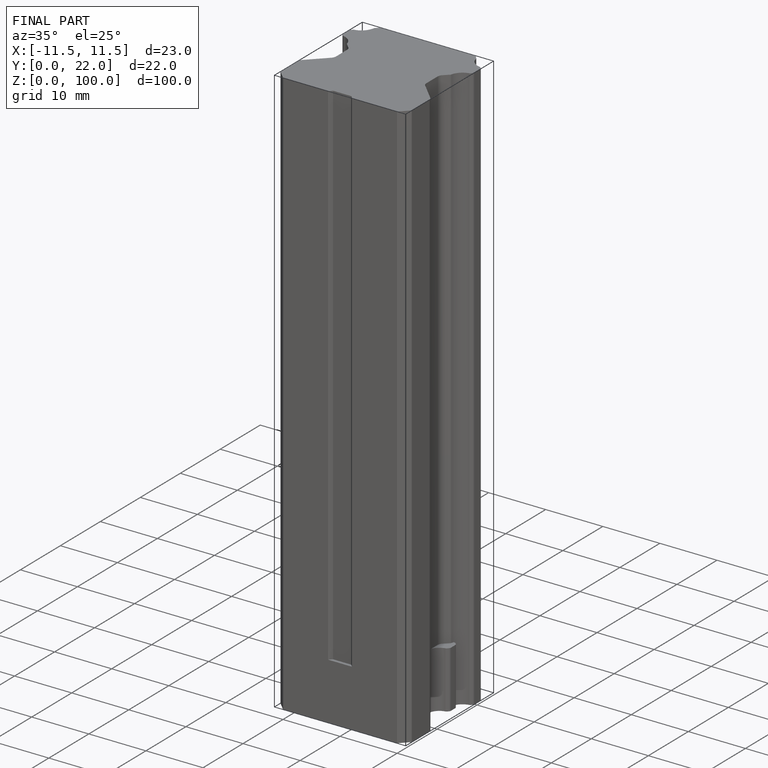
[diagram: finished part — iso view with bounding-box wireframe]
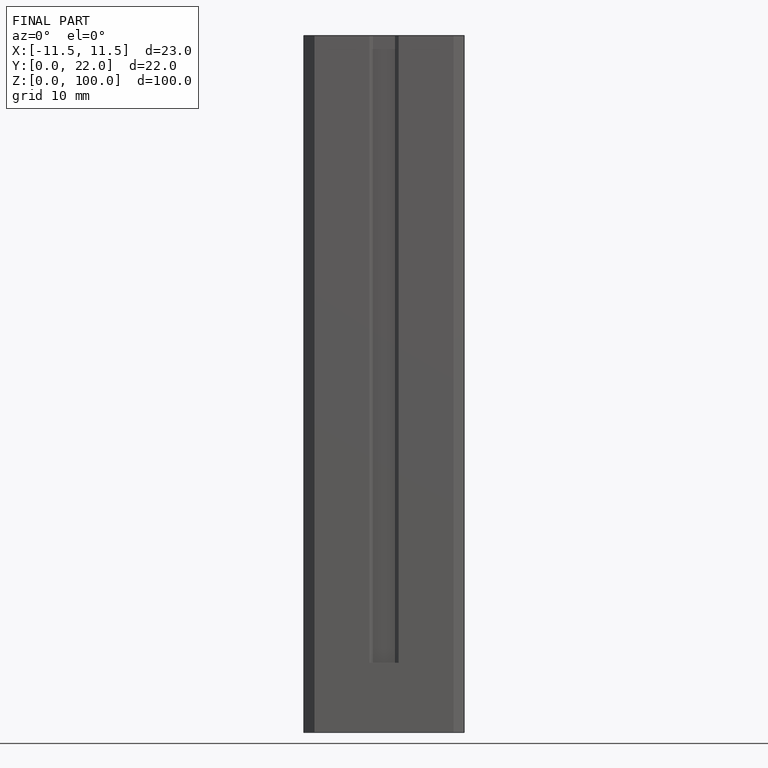
[diagram: finished part — front view with bounding-box wireframe]
